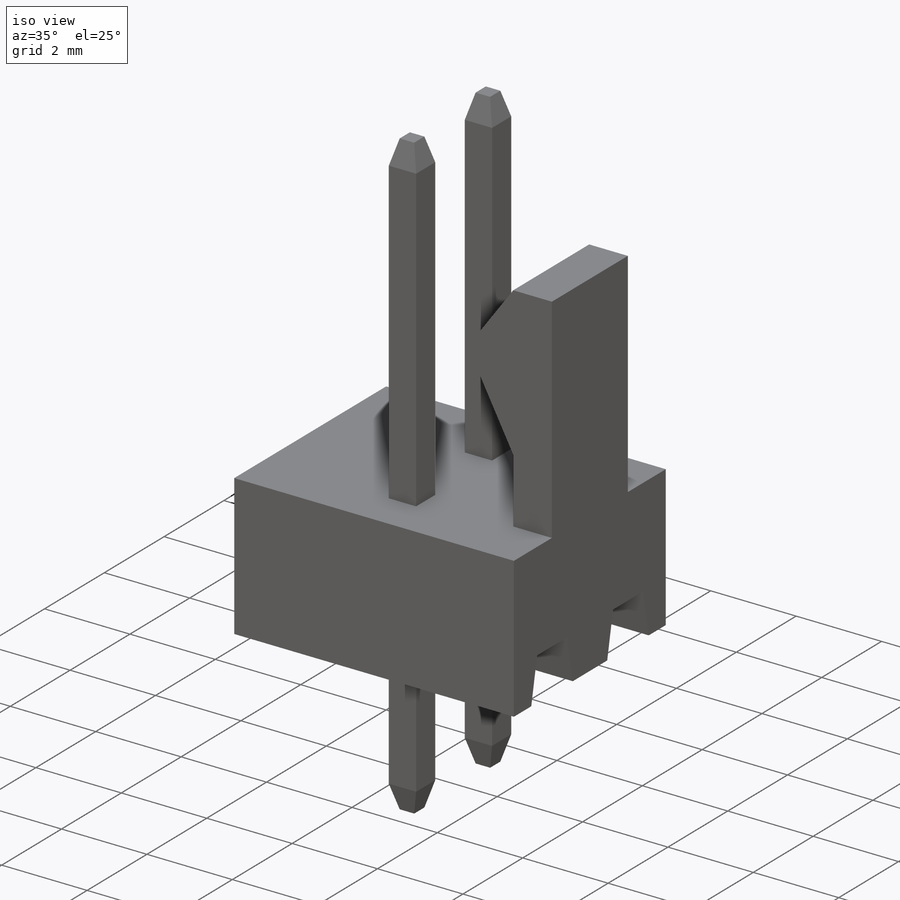
[diagram: iso view]
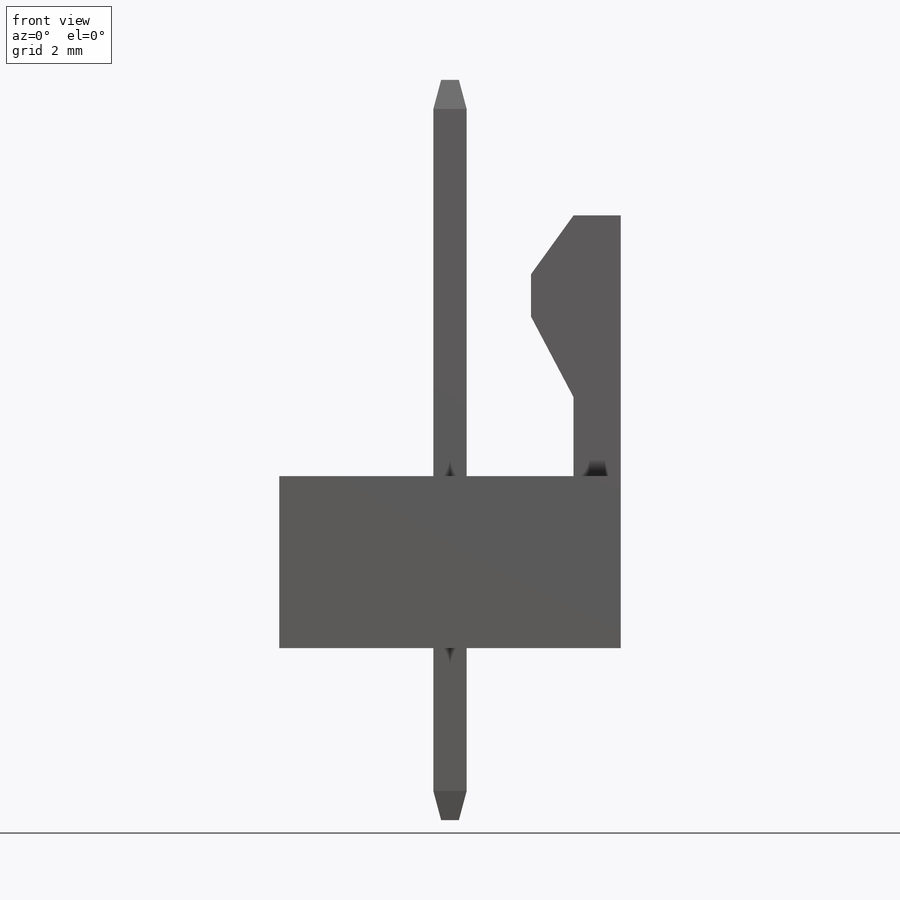
[diagram: front view]
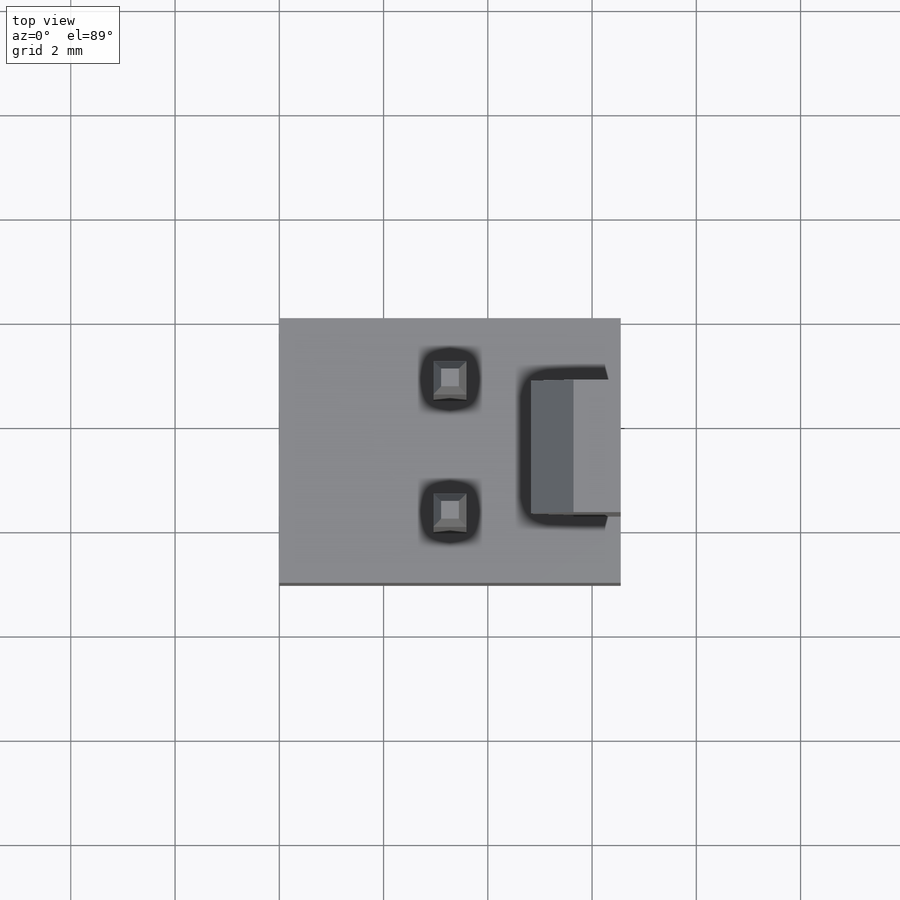
[diagram: top view]
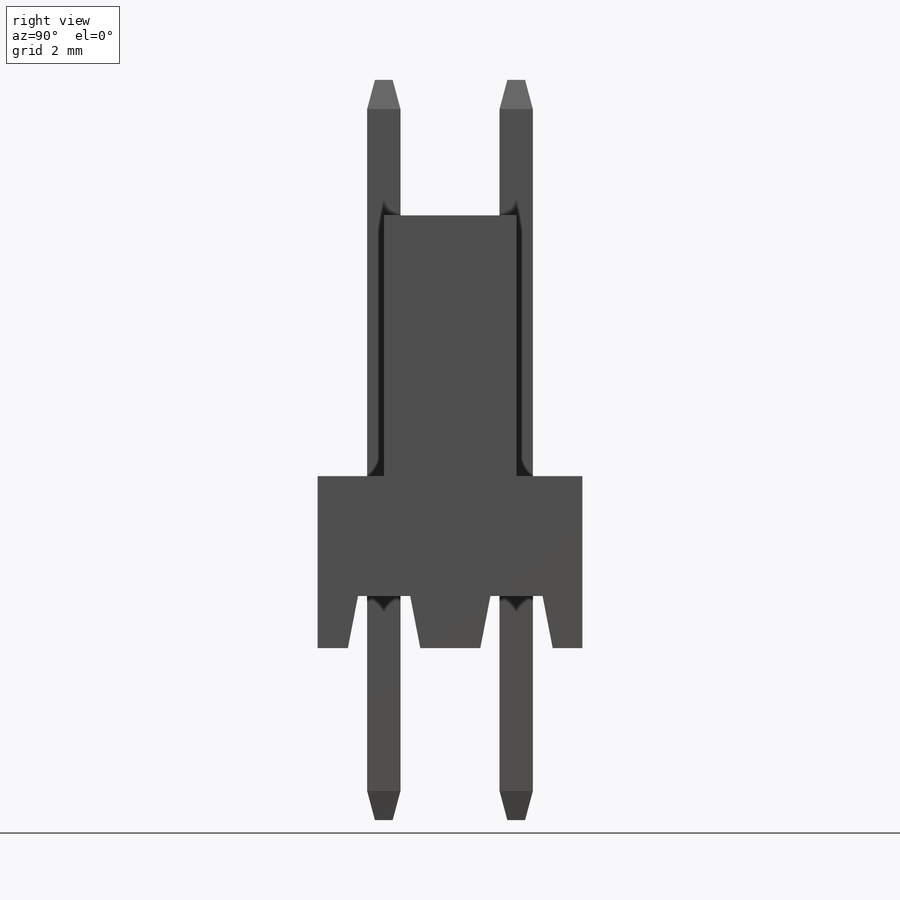
[diagram: right view]
SOLIDWORKS PART (.sldprt)
format: sldprt  version: not decoded by parser v0  size: 287,232 bytes
history: native  units: mm
features: sketch x6, cut_extrude x4, plane x3, extrude x2, chamfer x2, material x1 (+9 scaffold rows collapsed)
feature tree (27):
  scaffold x9  (default folders/planes/origin — collapsed)
  material  "Material <sin especificar>"
  plane  "Alzado"
  plane  "Planta"
  plane  "Vista lateral"
  sketch  "Croquis1"  dims[D1=6.55mm D2=3.3mm D3=8.3mm]
  extrude  "Saliente-Extruir1"  Depth=5.08mm
  sketch  "Croquis2"  dims[D1=2.54mm D2=1.27mm]
  cut_extrude  "Cortar-Extruir1"  Depth=5.08mm
  sketch  "Croquis4"  dims[c1.D1=0.64mm c1.D2=0.64mm c2.D1=~36.052406deg]
  cut_extrude  "Cortar-Extruir2"  Depth=5.08mm
  sketch  "Croquis5"  dims[c1.D1=1.0mm c1.D2=1.27mm c1.D3=0.5mm c2.D2=0.5mm c2.D4=101.0deg c3.D4=~1.275562mm c3.D5=619.0deg c4.D5=2.0]
  cut_extrude  "Cortar-Extruir3"  Depth=15.08mm
  sketch  "Croquis6"
  extrude  "Saliente-Extruir2"  Depth=7.6mm
  chamfer  "Chaflán1"  Distance=0.15mm Angle=75deg
  chamfer  "Chaflán2"  Distance=0.15mm Angle=75deg
  sketch  "Croquis7"
  cut_extrude  "Cortar-Extruir4"  Depth=0.1mm
decode coverage: 12 of 14 modeling features carry decoded parameters
note: ~ marks probable driven/reference dimensions
note: suppression state not decoded; provenance and decode notes live in map.json
